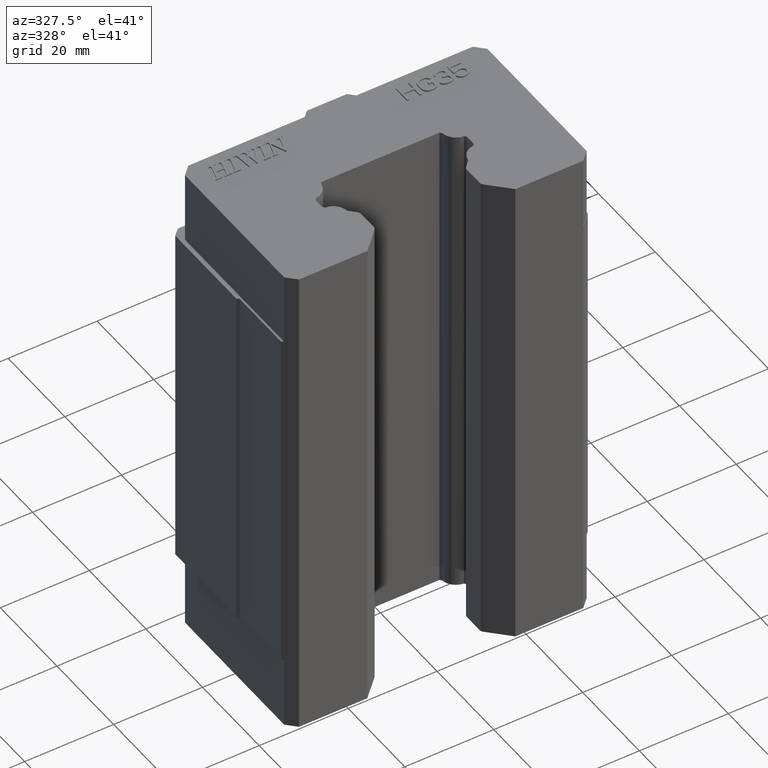
[diagram: clean part render]
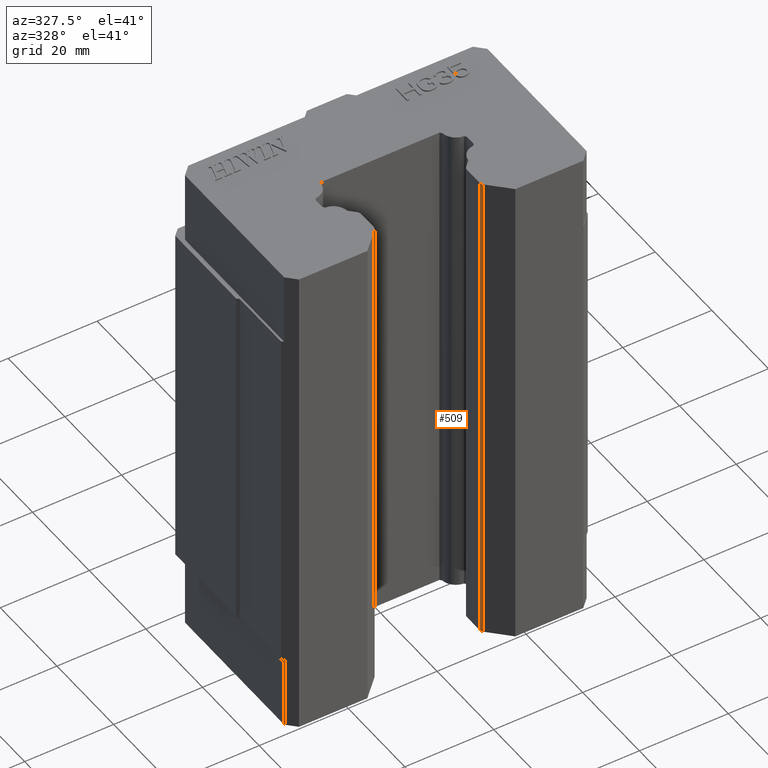
[diagram: same view with one face highlighted and labeled with its STEP entity id]
A machine part, auxiliary view. The second image highlights one B-rep face of the part: STEP entity #509.
In plain terms, the highlighted cylindrical surface (edge-blend (fillet) strip) has radius 1.2 mm, axis along (0, 0, 1).
Its self-contained STEP definition (entity closure, byte-faithful):
#493 = VERTEX_POINT ( 'NONE', #3598 ) ;
#495 = VERTEX_POINT ( 'NONE', #3596 ) ;
#498 = ORIENTED_EDGE ( 'NONE', *, *, #501, .F. ) ;
#499 = VERTEX_POINT ( 'NONE', #3595 ) ;
#500 = ORIENTED_EDGE ( 'NONE', *, *, #503, .T. ) ;
#501 = EDGE_CURVE ( 'NONE', #499, #495, #3594, .T. ) ;
#502 = VERTEX_POINT ( 'NONE', #3590 ) ;
#503 = EDGE_CURVE ( 'NONE', #499, #502, #3589, .T. ) ;
#504 = EDGE_CURVE ( 'NONE', #493, #502, #3584, .T. ) ;
#505 = ORIENTED_EDGE ( 'NONE', *, *, #504, .F. ) ;
#509 = ADVANCED_FACE ( 'NONE', ( #3636 ), #3635, .T. ) ;
#514 = EDGE_LOOP ( 'NONE', ( #517, #498, #500, #505 ) ) ;
#517 = ORIENTED_EDGE ( 'NONE', *, *, #519, .T. ) ;
#519 = EDGE_CURVE ( 'NONE', #493, #495, #3624, .T. ) ;
#3581 = DIRECTION ( 'NONE',  ( 0.0000000000000000000, -6.299419039237645600E-007, 0.9999999999998014900 ) ) ;
#3582 = VECTOR ( 'NONE', #3581, 1000.000000000000200 ) ;
#3583 = CARTESIAN_POINT ( 'NONE',  ( 11.90000000000045200, -16.26154209695000200, -56.20000000000001000 ) ) ;
#3584 = LINE ( 'NONE', #3583, #3582 ) ;
#3585 = DIRECTION ( 'NONE',  ( 1.000000000000000000, 8.673617379884037000E-015, 0.0000000000000000000 ) ) ;
#3586 = DIRECTION ( 'NONE',  ( 0.0000000000000000000, 0.0000000000000000000, -1.000000000000000000 ) ) ;
#3587 = CARTESIAN_POINT ( 'NONE',  ( 13.10000000000000100, -16.26154209695000200, 56.20000000000001000 ) ) ;
#3588 = AXIS2_PLACEMENT_3D ( 'NONE', #3587, #3586, #3585 ) ;
#3589 = CIRCLE ( 'NONE', #3588, 1.199999999999999700 ) ;
#3590 = CARTESIAN_POINT ( 'NONE',  ( 11.90000000165957400, -16.26161290241993700, 56.20000000000001000 ) ) ;
#3591 = DIRECTION ( 'NONE',  ( 0.0000000000000000000, 0.0000000000000000000, -1.000000000000000000 ) ) ;
#3592 = VECTOR ( 'NONE', #3591, 1000.000000000000000 ) ;
#3593 = CARTESIAN_POINT ( 'NONE',  ( 12.25147186256499800, -17.11007023435500000, -40.00000000000000000 ) ) ;
#3594 = LINE ( 'NONE', #3593, #3592 ) ;
#3595 = CARTESIAN_POINT ( 'NONE',  ( 12.25147186257000000, -17.11007023436499700, 56.20000000000001000 ) ) ;
#3596 = CARTESIAN_POINT ( 'NONE',  ( 12.25147186257201600, -17.11007023436201600, -56.20000000000001000 ) ) ;
#3598 = CARTESIAN_POINT ( 'NONE',  ( 11.90000000123000000, -16.26154209695000200, -56.20000000000001000 ) ) ;
#3620 = DIRECTION ( 'NONE',  ( 1.000000000000000000, 0.0000000000000000000, 0.0000000000000000000 ) ) ;
#3621 = DIRECTION ( 'NONE',  ( 0.0000000000000000000, 0.0000000000000000000, 1.000000000000000000 ) ) ;
#3622 = CARTESIAN_POINT ( 'NONE',  ( 13.10000000000000100, -16.26154209695000200, -56.20000000000001000 ) ) ;
#3623 = AXIS2_PLACEMENT_3D ( 'NONE', #3622, #3621, #3620 ) ;
#3624 = CIRCLE ( 'NONE', #3623, 1.199999999999999700 ) ;
#3631 = DIRECTION ( 'NONE',  ( 1.000000000000000000, 0.0000000000000000000, 0.0000000000000000000 ) ) ;
#3632 = DIRECTION ( 'NONE',  ( 0.0000000000000000000, 0.0000000000000000000, 1.000000000000000000 ) ) ;
#3633 = CARTESIAN_POINT ( 'NONE',  ( 13.10000000000000100, -16.26154209695000200, -40.00000000000000000 ) ) ;
#3634 = AXIS2_PLACEMENT_3D ( 'NONE', #3633, #3632, #3631 ) ;
#3635 = CYLINDRICAL_SURFACE ( 'NONE', #3634, 1.199999999999999700 ) ;
#3636 = FACE_OUTER_BOUND ( 'NONE', #514, .T. ) ;